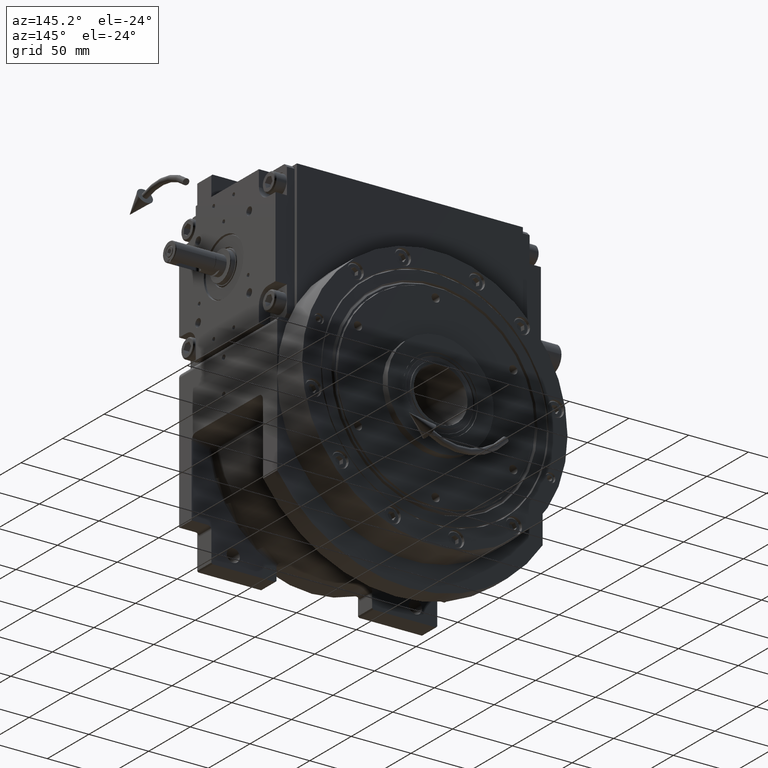
[diagram: clean part render]
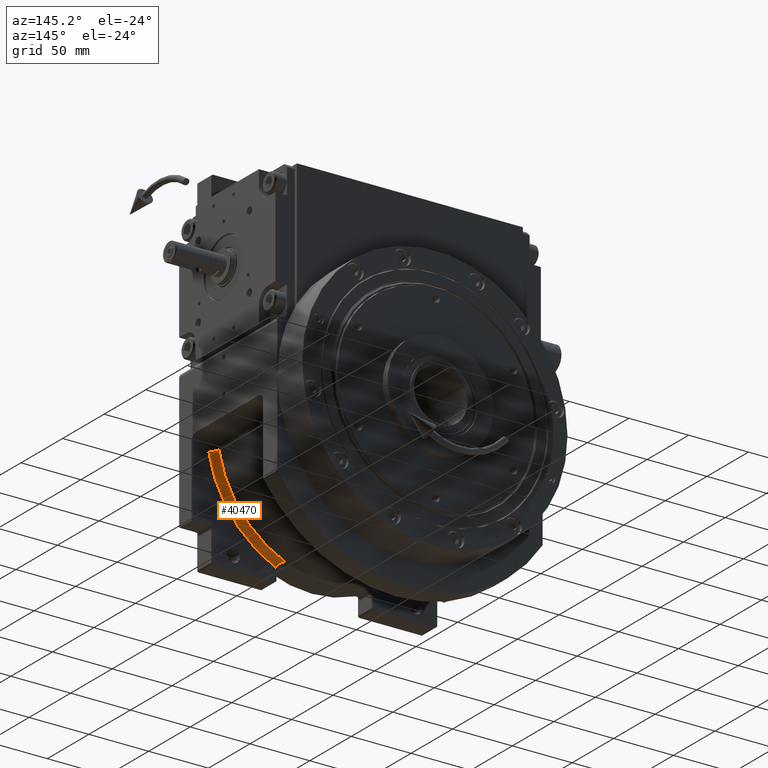
[diagram: same view with one face highlighted and labeled with its STEP entity id]
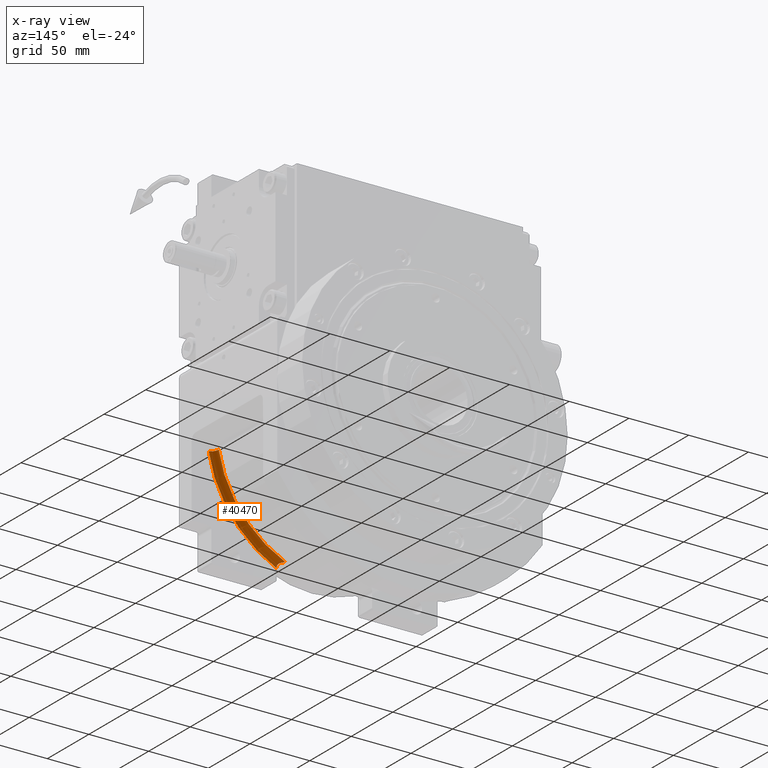
[diagram: x-ray of the same camera — body ghosted, the highlighted face saturated]
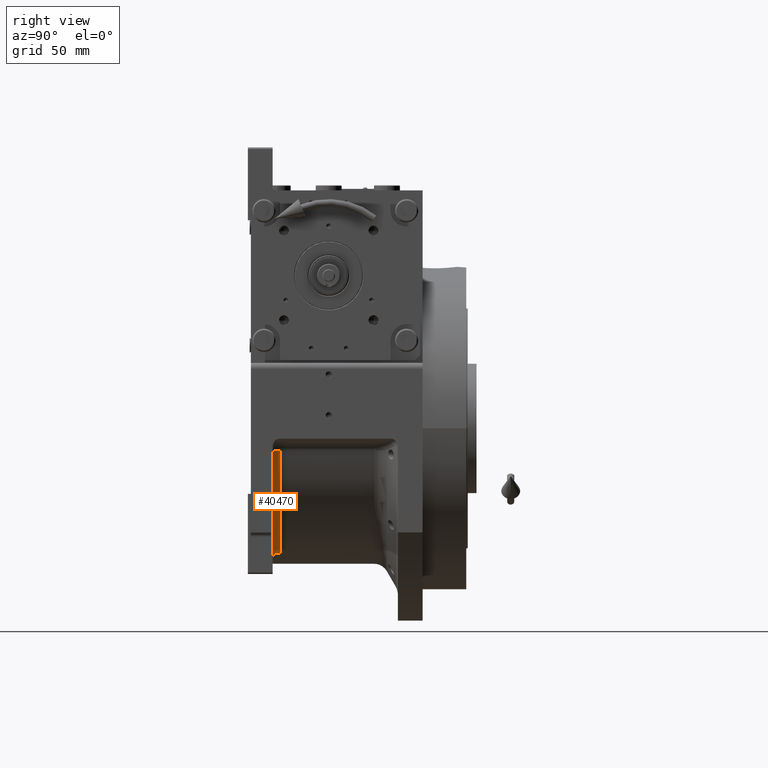
[diagram: same view with one face highlighted and labeled with its STEP entity id]
A machine part, auxiliary view. The second image highlights one B-rep face of the part: STEP entity #40470.
The next image is the same camera in x-ray: the body ghosted, the highlighted face saturated — about 0% of this face is hidden behind the body in this view.
A second angle (right view) of the same face is appended — the face is thin or edge-on in the first view.
In plain terms, the highlighted toroidal blend (fillet) surface has major radius 98 mm and minor (blend) radius 5 mm.
Its self-contained STEP definition (entity closure, byte-faithful):
#355 = ORIENTED_EDGE ( 'NONE', *, *, #64880, .F. ) ;
#1846 = DIRECTION ( 'NONE',  ( -1.364131030356945609E-10, -1.000000000000000000, -6.137826358276825835E-10 ) ) ;
#2465 = CARTESIAN_POINT ( 'NONE',  ( 40.00000000000000000, -38.43488273359274388, -88.58329413608420566 ) ) ;
#2479 = CARTESIAN_POINT ( 'NONE',  ( 91.75016228514499517, -33.50000000000000000, -15.19564808257825028 ) ) ;
#2496 = TOROIDAL_SURFACE ( 'NONE', #32522, 98.00000000000000000, 5.000000000000000000 ) ;
#3009 = VERTEX_POINT ( 'NONE', #2479 ) ;
#4383 = CARTESIAN_POINT ( 'NONE',  ( 35.84375000000000000, -33.50000000000000000, -85.81506619433150718 ) ) ;
#5102 = CARTESIAN_POINT ( 'NONE',  ( 37.03796036747787213, -35.07445129423850005, -85.58367028439576529 ) ) ;
#5430 = ORIENTED_EDGE ( 'NONE', *, *, #58324, .T. ) ;
#5532 = CARTESIAN_POINT ( 'NONE',  ( 39.52241143346854813, -37.84128128863497409, -86.95871039590753071 ) ) ;
#6256 = CARTESIAN_POINT ( 'NONE',  ( 39.94168863504557976, -38.30806312829813720, -87.94533091995748464 ) ) ;
#6720 = DIRECTION ( 'NONE',  ( -0.1633940650934810335, 6.278228019989741524E-10, -0.9865608848379442408 ) ) ;
#7834 = DIRECTION ( 'NONE',  ( 0.000000000000000000, 1.000000000000000000, 0.000000000000000000 ) ) ;
#8179 = ORIENTED_EDGE ( 'NONE', *, *, #30592, .T. ) ;
#8193 = CARTESIAN_POINT ( 'NONE',  ( 1.421085471520200056E-14, -33.50000000000000000, 1.421085471520200056E-14 ) ) ;
#11587 = DIRECTION ( 'NONE',  ( 0.9928071675485924397, 0.000000000000000000, -0.1197243837492646679 ) ) ;
#11832 = CARTESIAN_POINT ( 'NONE',  ( 38.57658386702574660, -36.84576868068085531, -86.03040274461163506 ) ) ;
#13956 = AXIS2_PLACEMENT_3D ( 'NONE', #8193, #7834, #49245 ) ;
#15224 = CARTESIAN_POINT ( 'NONE',  ( 37.59598383155265111, -35.74537592267259356, -85.64155832161043236 ) ) ;
#15460 = EDGE_CURVE ( 'NONE', #31180, #3009, #32513, .T. ) ;
#15559 = CARTESIAN_POINT ( 'NONE',  ( 37.31610024901428346, -35.41312971207743487, -85.59974200625552498 ) ) ;
#15901 = CARTESIAN_POINT ( 'NONE',  ( 37.07521646605638210, -35.12031844622141818, -85.58431968164917691 ) ) ;
#16366 = CARTESIAN_POINT ( 'NONE',  ( 38.39184062818169707, -36.64452035158482346, -85.92540056752750388 ) ) ;
#17503 = FACE_OUTER_BOUND ( 'NONE', #43936, .T. ) ;
#18874 = CARTESIAN_POINT ( 'NONE',  ( 96.68296670946028826, -33.50000000000000000, -16.01261840728710339 ) ) ;
#21101 = CARTESIAN_POINT ( 'NONE',  ( 37.91411399596454146, -36.11390633827765839, -85.71808759790106080 ) ) ;
#21439 = CARTESIAN_POINT ( 'NONE',  ( 37.12709070138915024, -35.18395834029334424, -85.58589792298440102 ) ) ;
#21913 = CARTESIAN_POINT ( 'NONE',  ( 39.74495358483298446, -38.07868174001065142, -87.36883667221924554 ) ) ;
#22240 = CARTESIAN_POINT ( 'NONE',  ( 39.47073459451536337, -37.78729085016654921, -86.88160583691413308 ) ) ;
#24389 = CARTESIAN_POINT ( 'NONE',  ( 40.00000000000915179, -32.49709200338929804, -89.46507963159309895 ) ) ;
#25612 = CARTESIAN_POINT ( 'NONE',  ( 36.86006189105991382, -34.85487867555588792, -85.58224737668963655 ) ) ;
#25747 = DIRECTION ( 'NONE',  ( -1.521193458686483597E-12, -0.9891523797391900130, 0.1468930551670057927 ) ) ;
#25967 = CARTESIAN_POINT ( 'NONE',  ( 38.11072850963851977, -36.33430569366689156, -85.78944643306051887 ) ) ;
#25997 = VERTEX_POINT ( 'NONE', #62573 ) ;
#26324 = CARTESIAN_POINT ( 'NONE',  ( 36.28122944560868035, -34.10514034861937915, -85.66356157534990245 ) ) ;
#26651 = CARTESIAN_POINT ( 'NONE',  ( 36.06776989235682152, -33.81578640616864817, -85.72149622611073028 ) ) ;
#27113 = CARTESIAN_POINT ( 'NONE',  ( 40.00000000000000000, -38.43488273359274388, -88.58329413608420566 ) ) ;
#27466 = CARTESIAN_POINT ( 'NONE',  ( 39.64492163817222092, -37.97074917450614606, -87.16756865298404477 ) ) ;
#27793 = CARTESIAN_POINT ( 'NONE',  ( 39.80188061413612388, -38.14214654199553678, -87.50906114663472124 ) ) ;
#28254 = CARTESIAN_POINT ( 'NONE',  ( -4.517455316885850268E-28, -33.50000000000000000, 0.000000000000000000 ) ) ;
#30592 = EDGE_CURVE ( 'NONE', #51926, #25997, #61839, .T. ) ;
#31180 = VERTEX_POINT ( 'NONE', #61181 ) ;
#31554 = CARTESIAN_POINT ( 'NONE',  ( 37.22983051062382032, -35.30922991626377438, -85.59133299640613757 ) ) ;
#31909 = CARTESIAN_POINT ( 'NONE',  ( 37.03049107713086130, -35.06524112375337410, -85.58358378534640565 ) ) ;
#32513 = CIRCLE ( 'NONE', #59149, 4.999999999999942268 ) ;
#32522 = AXIS2_PLACEMENT_3D ( 'NONE', #28254, #49482, #11587 ) ;
#33405 = EDGE_CURVE ( 'NONE', #3009, #25997, #63936, .T. ) ;
#33889 = CIRCLE ( 'NONE', #44958, 6.002907996611312136 ) ;
#33948 = AXIS2_PLACEMENT_3D ( 'NONE', #44662, #34940, #55802 ) ;
#34940 = DIRECTION ( 'NONE',  ( 0.000000000000000000, 1.000000000000000000, 0.000000000000000000 ) ) ;
#37097 = CARTESIAN_POINT ( 'NONE',  ( 36.67739314232039760, -34.62462029465078217, -85.59395588697439905 ) ) ;
#37224 = CARTESIAN_POINT ( 'NONE',  ( 38.73982174116559207, -37.02162543259724714, -86.13633260630172117 ) ) ;
#38239 = CARTESIAN_POINT ( 'NONE',  ( 38.84315786353846534, -37.13154013006351306, -86.21337737788608990 ) ) ;
#38588 = CARTESIAN_POINT ( 'NONE',  ( 39.46017560821716330, -37.77628257991309368, -86.86635131325193981 ) ) ;
#40470 = ADVANCED_FACE ( 'NONE', ( #17503 ), #2496, .F. ) ;
#41066 = DIRECTION ( 'NONE',  ( 1.000000000000000000, -1.519820681091505116E-12, 1.203206486169197935E-13 ) ) ;
#42806 = CARTESIAN_POINT ( 'NONE',  ( 39.48646516666547512, -37.80370147460352825, -86.90456860182018772 ) ) ;
#43457 = CARTESIAN_POINT ( 'NONE',  ( 39.13526922541816333, -37.43956773572921293, -86.46109047546306670 ) ) ;
#43927 = CIRCLE ( 'NONE', #33948, 97.99999999999998579 ) ;
#43936 = EDGE_LOOP ( 'NONE', ( #65606, #5430, #355, #8179, #64749 ) ) ;
#44662 = CARTESIAN_POINT ( 'NONE',  ( 1.421085471520199867E-13, -38.50000000000000000, -1.136868377216159793E-13 ) ) ;
#44958 = AXIS2_PLACEMENT_3D ( 'NONE', #24389, #41066, #25747 ) ;
#47872 = CARTESIAN_POINT ( 'NONE',  ( 37.02555919719009836, -35.05915592930543312, -85.58353824021037326 ) ) ;
#48687 = CARTESIAN_POINT ( 'NONE',  ( 39.59124602772452306, -37.91360148802566243, -87.06920353046638184 ) ) ;
#49190 = CARTESIAN_POINT ( 'NONE',  ( 40.00000000000000000, -38.50000000000000000, -89.46507698536399289 ) ) ;
#49245 = DIRECTION ( 'NONE',  ( 0.9865608847878558629, 0.000000000000000000, -0.1633940653959109757 ) ) ;
#49482 = DIRECTION ( 'NONE',  ( 0.000000000000000000, -1.000000000000000000, 0.000000000000000000 ) ) ;
#51733 = CARTESIAN_POINT ( 'NONE',  ( 38.31457193953814766, -36.55949762728036490, -85.88662211840959060 ) ) ;
#51926 = VERTEX_POINT ( 'NONE', #2465 ) ;
#52768 = CARTESIAN_POINT ( 'NONE',  ( 37.04915558720004043, -35.08824879021479148, -85.58382109314119646 ) ) ;
#53210 = CARTESIAN_POINT ( 'NONE',  ( 39.99355479935752555, -38.38596604858462769, -88.25689856553876211 ) ) ;
#54249 = CARTESIAN_POINT ( 'NONE',  ( 38.49290683869843122, -36.75509717949094579, -85.97984885203182159 ) ) ;
#55802 = DIRECTION ( 'NONE',  ( 0.9865608847851541352, 0.000000000000000000, -0.1633940654122230385 ) ) ;
#57635 = CARTESIAN_POINT ( 'NONE',  ( 38.29599216042110754, -36.53899163224654245, -85.87765302453139782 ) ) ;
#58324 = EDGE_CURVE ( 'NONE', #31180, #64292, #43927, .T. ) ;
#59149 = AXIS2_PLACEMENT_3D ( 'NONE', #18874, #6720, #1846 ) ;
#59451 = CARTESIAN_POINT ( 'NONE',  ( 39.30611994321870384, -37.61586876873188601, -86.64825657115706292 ) ) ;
#61181 = CARTESIAN_POINT ( 'NONE',  ( 96.68296670890340749, -38.50000000000000000, -16.01261841038749623 ) ) ;
#61839 = B_SPLINE_CURVE_WITH_KNOTS ( 'NONE', 3,
 ( #27113, #53210, #6256, #27793, #21913, #27466, #48687, #5532, #42806, #22240, #38588, #63995, #59451, #43457, #38239, #37224, #11832, #54249, #16366, #68725, #51733, #62849, #57635, #63529, #25967, #21101, #15224, #63875, #15559, #31554, #21439, #15901, #52768, #5102, #31909, #47872, #25612, #37097, #26324, #26651, #4383 ),
 .UNSPECIFIED., .F., .F.,
 ( 4, 2, 2, 1, 1, 1, 2, 2, 2, 2, 1, 1, 1, 1, 2, 2, 2, 2, 1, 1, 1, 1, 2, 2, 2, 4 ),
 ( 0.000000000000000000, 0.1250000000000376366, 0.1875000000000560108, 0.2187500000000673073, 0.2343750000000743017, 0.2421875000000771605, 0.2460937500000755784, 0.2500000000000739409, 0.3750000000000743294, 0.4375000000000736633, 0.4687500000000730527, 0.4843750000000727196, 0.4921875000000733302, 0.4960937500000727751, 0.4980468750000709988, 0.5000000000000692779, 0.6250000000000780487, 0.6875000000000813793, 0.7187500000000821565, 0.7343750000000833777, 0.7421875000000830447, 0.7460937500000819345, 0.7480468750000799361, 0.7500000000000778266, 0.8750000000000389688, 1.000000000000000000 ),
 .UNSPECIFIED. ) ;
#62573 = CARTESIAN_POINT ( 'NONE',  ( 35.84375000000000000, -33.50000000000000000, -85.81506619433150718 ) ) ;
#62849 = CARTESIAN_POINT ( 'NONE',  ( 38.30342995416547325, -36.54720253401932695, -85.88123203050955112 ) ) ;
#63529 = CARTESIAN_POINT ( 'NONE',  ( 38.29131797567440998, -36.53382906549055775, -85.87541827149557605 ) ) ;
#63875 = CARTESIAN_POINT ( 'NONE',  ( 37.48607927852391697, -35.61623698484422818, -85.62115722521122052 ) ) ;
#63936 = CIRCLE ( 'NONE', #13956, 93.00000000000001421 ) ;
#63995 = CARTESIAN_POINT ( 'NONE',  ( 39.45398976363964039, -37.76983823182825972, -86.85751929494726653 ) ) ;
#64292 = VERTEX_POINT ( 'NONE', #49190 ) ;
#64749 = ORIENTED_EDGE ( 'NONE', *, *, #33405, .F. ) ;
#64880 = EDGE_CURVE ( 'NONE', #51926, #64292, #33889, .T. ) ;
#65606 = ORIENTED_EDGE ( 'NONE', *, *, #15460, .F. ) ;
#68725 = CARTESIAN_POINT ( 'NONE',  ( 38.34046665861283998, -36.58803727839591602, -85.89934940610265812 ) ) ;